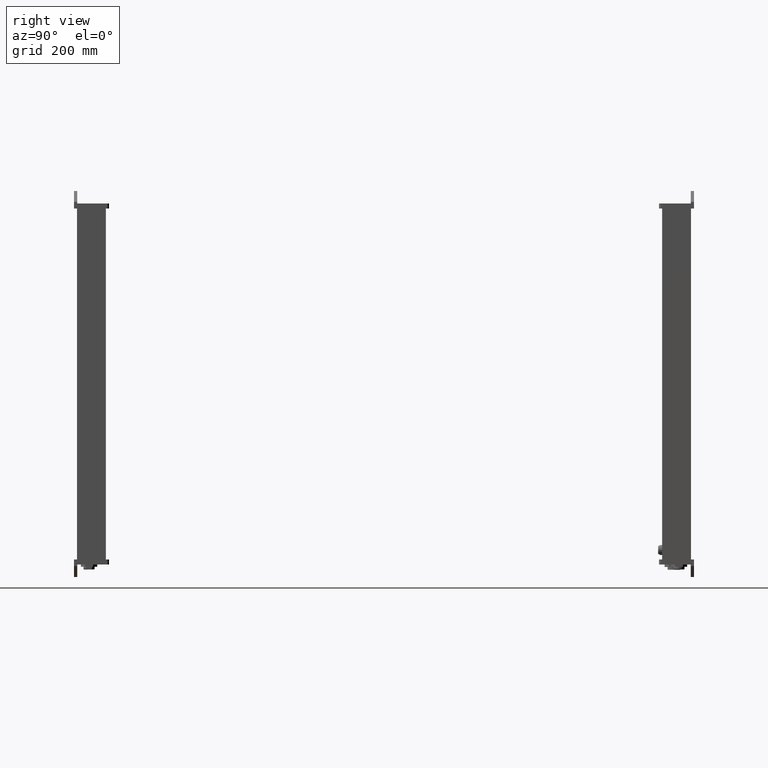
[diagram: clean part render]
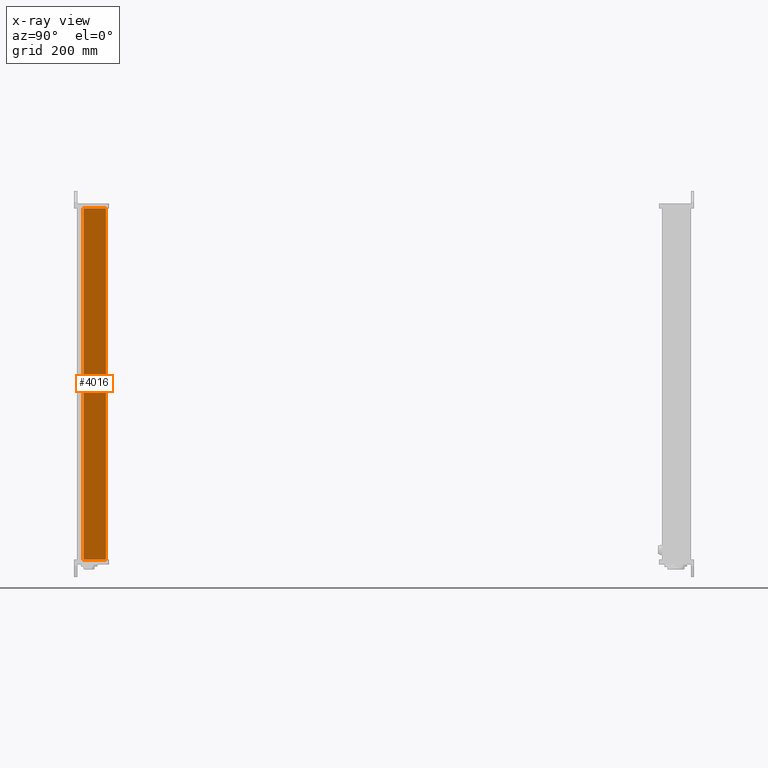
[diagram: x-ray — body ghosted, one internal face saturated and labeled with its STEP entity id]
A machine part, right view, then the same camera in x-ray: the body is ghosted and one INTERNAL B-rep face — a face not visible from any outside direction — is saturated and labeled: STEP entity #4016.
In plain terms, the highlighted planar face has unit normal (-1, 0, 0).
Its self-contained STEP definition (entity closure, byte-faithful):
#3964=CARTESIAN_POINT('Vertex',(48.,52.,0.)) ;
#3967=CARTESIAN_POINT('Line Origine',(48.,52.,315.5)) ;
#3971=CARTESIAN_POINT('Vertex',(48.,52.,631.)) ;
#3986=CARTESIAN_POINT('Axis2P3D Location',(48.,52.,0.)) ;
#3991=CARTESIAN_POINT('Line Origine',(48.,32.,0.)) ;
#3995=CARTESIAN_POINT('Vertex',(48.,12.,0.)) ;
#3998=CARTESIAN_POINT('Line Origine',(48.,12.,315.5)) ;
#4002=CARTESIAN_POINT('Vertex',(48.,12.,631.)) ;
#4005=CARTESIAN_POINT('Line Origine',(48.,32.,631.)) ;
#3968=DIRECTION('Vector Direction',(0.,0.,1.)) ;
#3987=DIRECTION('Axis2P3D Direction',(-1.,0.,0.)) ;
#3988=DIRECTION('Axis2P3D XDirection',(0.,-1.,0.)) ;
#3992=DIRECTION('Vector Direction',(0.,-1.,0.)) ;
#3999=DIRECTION('Vector Direction',(0.,0.,1.)) ;
#4006=DIRECTION('Vector Direction',(0.,-1.,0.)) ;
#3989=AXIS2_PLACEMENT_3D('Plane Axis2P3D',#3986,#3987,#3988) ;
#4011=ORIENTED_EDGE('',*,*,#3973,.F.) ;
#4012=ORIENTED_EDGE('',*,*,#3997,.T.) ;
#4013=ORIENTED_EDGE('',*,*,#4004,.T.) ;
#4014=ORIENTED_EDGE('',*,*,#4009,.F.) ;
#3969=VECTOR('Line Direction',#3968,1.) ;
#3993=VECTOR('Line Direction',#3992,1.) ;
#4000=VECTOR('Line Direction',#3999,1.) ;
#4007=VECTOR('Line Direction',#4006,1.) ;
#4016=ADVANCED_FACE('PartBody',(#4015),#3990,.T.) ;
#3973=EDGE_CURVE('',#3965,#3972,#3970,.T.) ;
#3997=EDGE_CURVE('',#3965,#3996,#3994,.T.) ;
#4004=EDGE_CURVE('',#3996,#4003,#4001,.T.) ;
#4009=EDGE_CURVE('',#3972,#4003,#4008,.T.) ;
#4010=EDGE_LOOP('',(#4011,#4012,#4013,#4014)) ;
#4015=FACE_OUTER_BOUND('',#4010,.T.) ;
#3970=LINE('Line',#3967,#3969) ;
#3994=LINE('Line',#3991,#3993) ;
#4001=LINE('Line',#3998,#4000) ;
#4008=LINE('Line',#4005,#4007) ;
#3990=PLANE('Plane',#3989) ;
#3965=VERTEX_POINT('',#3964) ;
#3972=VERTEX_POINT('',#3971) ;
#3996=VERTEX_POINT('',#3995) ;
#4003=VERTEX_POINT('',#4002) ;